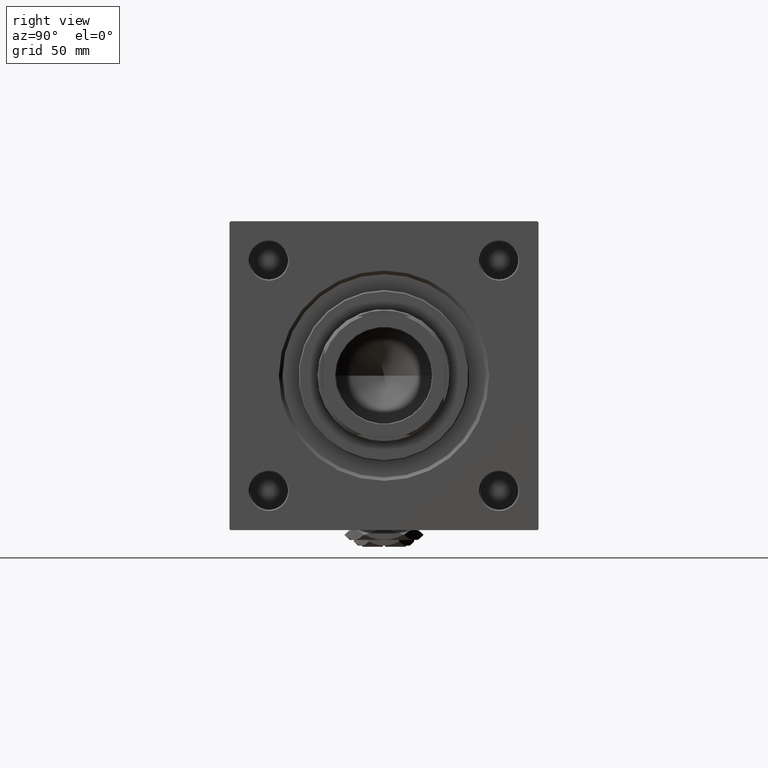
[diagram: clean part render]
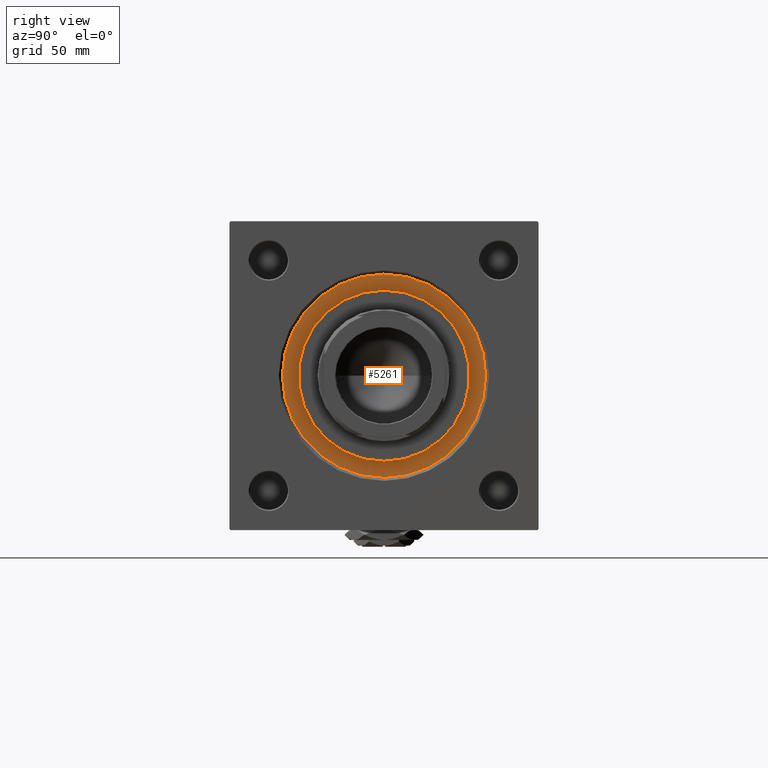
[diagram: same view with one face highlighted and labeled with its STEP entity id]
A machine part, right view. The second image highlights one B-rep face of the part: STEP entity #5261.
In plain terms, the highlighted planar face has unit normal (1, 0, 0).
Its self-contained STEP definition (entity closure, byte-faithful):
#121 = CARTESIAN_POINT ( 'NONE',  ( 0.000000000000000000, 0.000000000000000000, 28.69999999999999929 ) ) ;
#1573 = DIRECTION ( 'NONE',  ( 1.000000000000000000, 0.000000000000000000, 0.000000000000000000 ) ) ;
#3223 = AXIS2_PLACEMENT_3D ( 'NONE', #43400, #31472, #36218 ) ;
#4840 = VERTEX_POINT ( 'NONE', #18306 ) ;
#5261 = ADVANCED_FACE ( 'NONE', ( #45482, #16342 ), #17406, .T. ) ;
#5433 = DIRECTION ( 'NONE',  ( 1.000000000000000000, 0.000000000000000000, -0.000000000000000000 ) ) ;
#7001 = ORIENTED_EDGE ( 'NONE', *, *, #50092, .T. ) ;
#7354 = DIRECTION ( 'NONE',  ( 0.000000000000000000, 0.000000000000000000, 1.000000000000000000 ) ) ;
#8610 = DIRECTION ( 'NONE',  ( 1.000000000000000000, 0.000000000000000000, 0.000000000000000000 ) ) ;
#9092 = AXIS2_PLACEMENT_3D ( 'NONE', #43180, #7354, #18549 ) ;
#9379 = VERTEX_POINT ( 'NONE', #51590 ) ;
#13208 = EDGE_LOOP ( 'NONE', ( #7001, #47286 ) ) ;
#16342 = FACE_OUTER_BOUND ( 'NONE', #13208, .T. ) ;
#17406 = PLANE ( 'NONE',  #29524 ) ;
#18306 = CARTESIAN_POINT ( 'NONE',  ( -36.00000000000000000, 0.000000000000000000, 28.69999999999999929 ) ) ;
#18549 = DIRECTION ( 'NONE',  ( 1.000000000000000000, 0.000000000000000000, 0.000000000000000000 ) ) ;
#18659 = CARTESIAN_POINT ( 'NONE',  ( 42.75000000000000000, 5.235365066354935472E-15, 28.69999999999999929 ) ) ;
#19247 = ORIENTED_EDGE ( 'NONE', *, *, #47178, .F. ) ;
#19278 = AXIS2_PLACEMENT_3D ( 'NONE', #121, #48652, #8610 ) ;
#21782 = EDGE_LOOP ( 'NONE', ( #33416, #19247 ) ) ;
#23279 = VERTEX_POINT ( 'NONE', #18659 ) ;
#29374 = AXIS2_PLACEMENT_3D ( 'NONE', #41889, #37917, #1573 ) ;
#29524 = AXIS2_PLACEMENT_3D ( 'NONE', #41781, #45760, #5433 ) ;
#30518 = EDGE_CURVE ( 'NONE', #23279, #9379, #31952, .T. ) ;
#31472 = DIRECTION ( 'NONE',  ( 0.000000000000000000, 0.000000000000000000, 1.000000000000000000 ) ) ;
#31952 = CIRCLE ( 'NONE', #9092, 42.75000000000000000 ) ;
#33416 = ORIENTED_EDGE ( 'NONE', *, *, #45800, .F. ) ;
#34486 = CARTESIAN_POINT ( 'NONE',  ( 36.00000000000000000, 4.408728476930470856E-15, 28.69999999999999929 ) ) ;
#35265 = CIRCLE ( 'NONE', #29374, 36.00000000000000000 ) ;
#36218 = DIRECTION ( 'NONE',  ( 1.000000000000000000, 0.000000000000000000, 0.000000000000000000 ) ) ;
#37917 = DIRECTION ( 'NONE',  ( 0.000000000000000000, 0.000000000000000000, 1.000000000000000000 ) ) ;
#41286 = CIRCLE ( 'NONE', #19278, 36.00000000000000000 ) ;
#41781 = CARTESIAN_POINT ( 'NONE',  ( 0.000000000000000000, 0.000000000000000000, 28.69999999999999929 ) ) ;
#41889 = CARTESIAN_POINT ( 'NONE',  ( 0.000000000000000000, 0.000000000000000000, 28.69999999999999929 ) ) ;
#42205 = CIRCLE ( 'NONE', #3223, 42.75000000000000000 ) ;
#43180 = CARTESIAN_POINT ( 'NONE',  ( 0.000000000000000000, 0.000000000000000000, 28.69999999999999929 ) ) ;
#43400 = CARTESIAN_POINT ( 'NONE',  ( 0.000000000000000000, 0.000000000000000000, 28.69999999999999929 ) ) ;
#45482 = FACE_BOUND ( 'NONE', #21782, .T. ) ;
#45760 = DIRECTION ( 'NONE',  ( 0.000000000000000000, 0.000000000000000000, 1.000000000000000000 ) ) ;
#45800 = EDGE_CURVE ( 'NONE', #4840, #51444, #35265, .T. ) ;
#47178 = EDGE_CURVE ( 'NONE', #51444, #4840, #41286, .T. ) ;
#47286 = ORIENTED_EDGE ( 'NONE', *, *, #30518, .T. ) ;
#48652 = DIRECTION ( 'NONE',  ( 0.000000000000000000, 0.000000000000000000, 1.000000000000000000 ) ) ;
#50092 = EDGE_CURVE ( 'NONE', #9379, #23279, #42205, .T. ) ;
#51444 = VERTEX_POINT ( 'NONE', #34486 ) ;
#51590 = CARTESIAN_POINT ( 'NONE',  ( -42.75000000000000000, 0.000000000000000000, 28.69999999999999929 ) ) ;